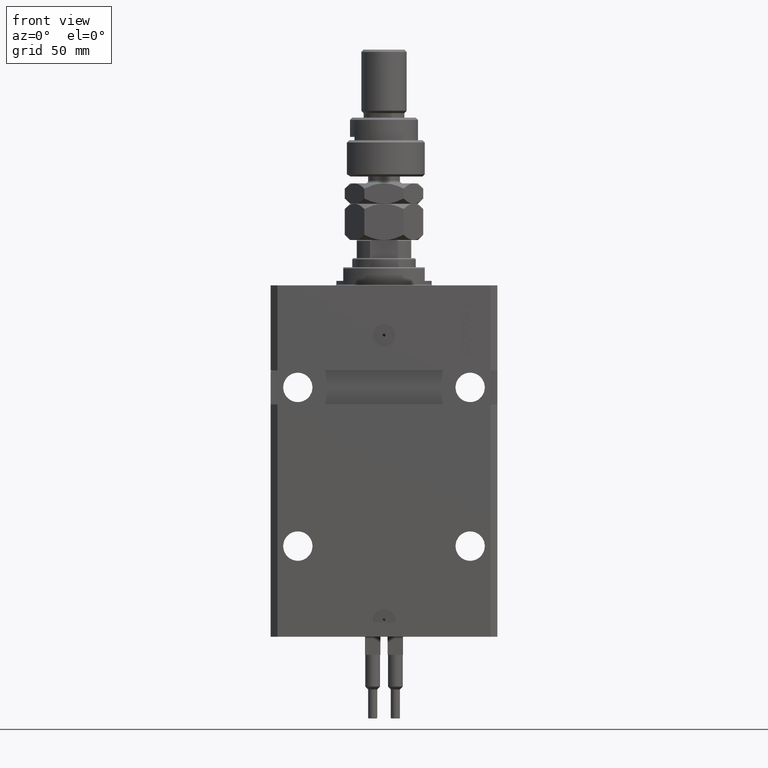
[diagram: clean part render]
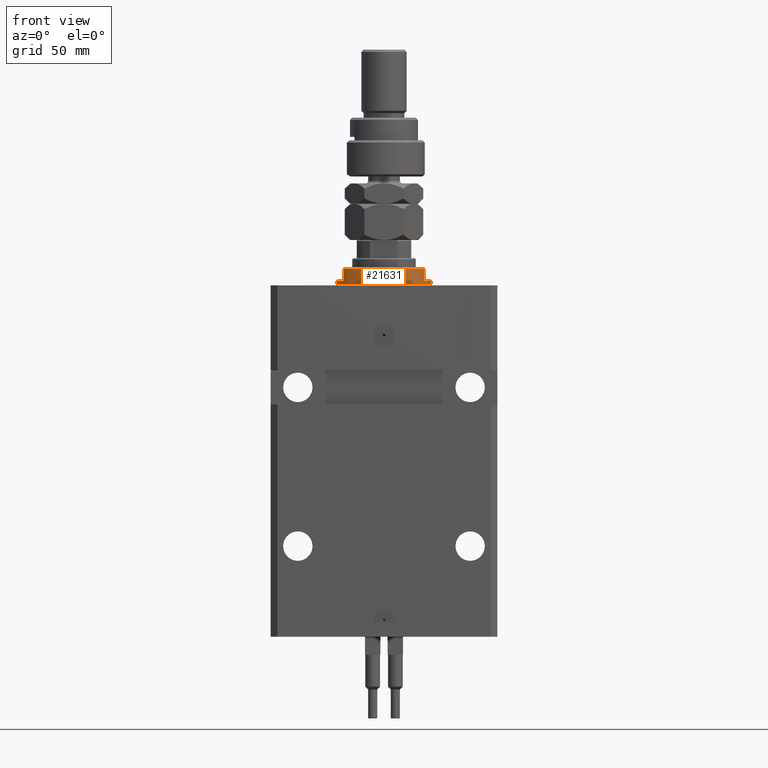
[diagram: same view with one face highlighted and labeled with its STEP entity id]
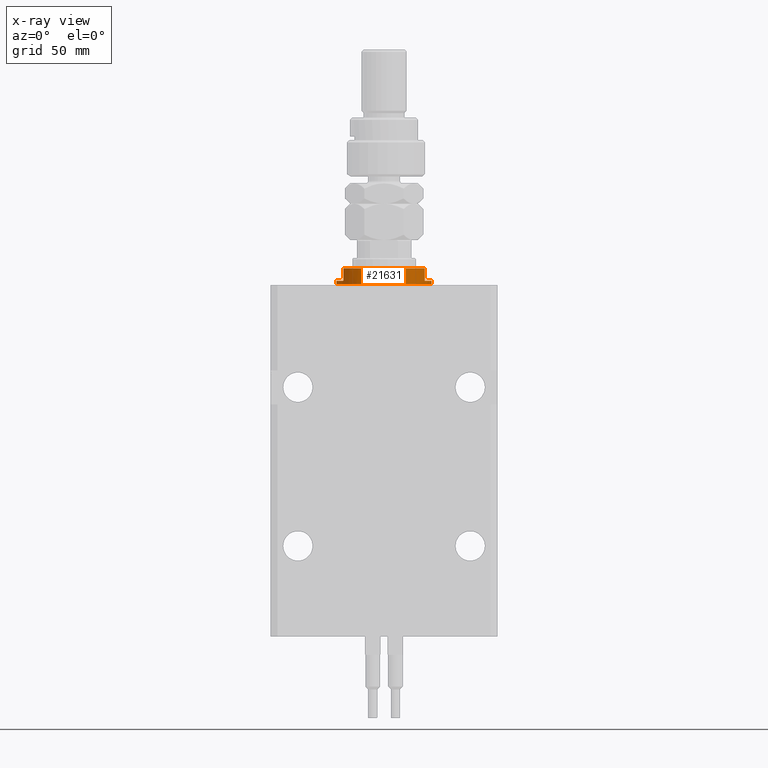
[diagram: x-ray of the same camera — body ghosted, the highlighted face saturated]
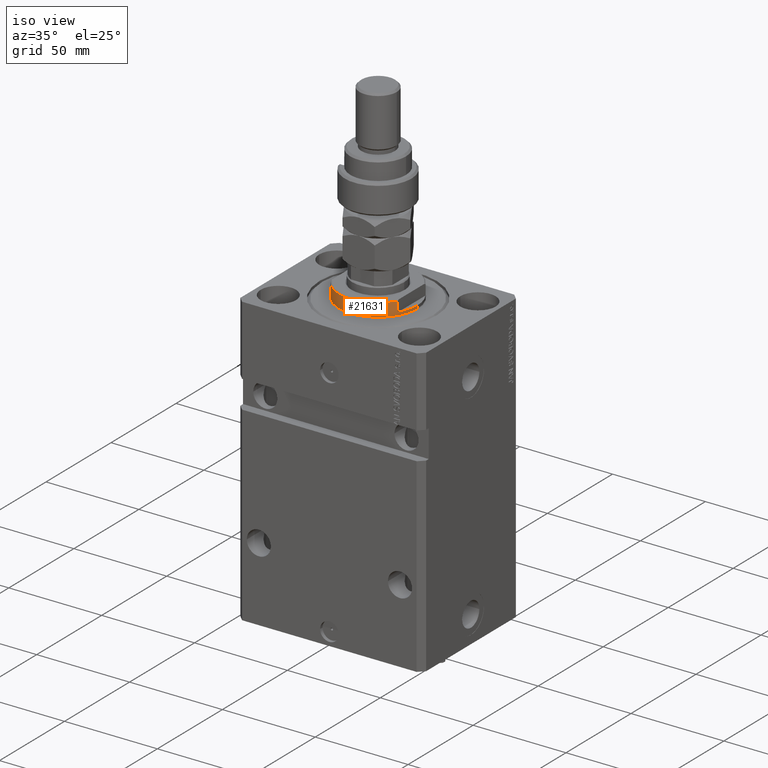
[diagram: same view with one face highlighted and labeled with its STEP entity id]
A machine part, front view. The second image highlights one B-rep face of the part: STEP entity #21631.
The next image is the same camera in x-ray: the body ghosted, the highlighted face saturated — about 0% of this face is hidden behind the body in this view.
A second angle (iso view) of the same face is appended — the face is thin or edge-on in the first view.
In plain terms, the highlighted cylindrical surface (partial cylindrical patch) has radius 21 mm, axis along (0, 0, -1).
Its self-contained STEP definition (entity closure, byte-faithful):
#1526 = DIRECTION ( 'NONE',  ( 0.000000000000000000, 0.000000000000000000, -1.000000000000000000 ) ) ;
#3687 = CARTESIAN_POINT ( 'NONE',  ( -21.00000000000000000, 2.571758278209441661E-15, -8.000000000000000000 ) ) ;
#4685 = ORIENTED_EDGE ( 'NONE', *, *, #40372, .T. ) ;
#5796 = CARTESIAN_POINT ( 'NONE',  ( 21.00000000000000000, 0.000000000000000000, -8.000000000000000000 ) ) ;
#9638 = ORIENTED_EDGE ( 'NONE', *, *, #14399, .F. ) ;
#9640 = VECTOR ( 'NONE', #27250, 1000.000000000000000 ) ;
#10115 = CARTESIAN_POINT ( 'NONE',  ( -21.00000000000000000, 2.571758278209441661E-15, -2.000000000000000000 ) ) ;
#10186 = CARTESIAN_POINT ( 'NONE',  ( -18.00000000000000000, -10.81665382639197048, -8.000000000000000000 ) ) ;
#10343 = DIRECTION ( 'NONE',  ( -0.000000000000000000, -0.000000000000000000, -1.000000000000000000 ) ) ;
#10390 = VECTOR ( 'NONE', #49017, 1000.000000000000000 ) ;
#11148 = DIRECTION ( 'NONE',  ( 0.000000000000000000, 0.000000000000000000, -1.000000000000000000 ) ) ;
#11280 = LINE ( 'NONE', #3687, #9640 ) ;
#11287 = DIRECTION ( 'NONE',  ( 1.000000000000000000, 0.000000000000000000, 0.000000000000000000 ) ) ;
#12791 = ORIENTED_EDGE ( 'NONE', *, *, #13886, .T. ) ;
#13308 = VERTEX_POINT ( 'NONE', #45004 ) ;
#13886 = EDGE_CURVE ( 'NONE', #13308, #42861, #36668, .T. ) ;
#14270 = AXIS2_PLACEMENT_3D ( 'NONE', #40522, #49911, #20093 ) ;
#14399 = EDGE_CURVE ( 'NONE', #13308, #19113, #31332, .T. ) ;
#14528 = CARTESIAN_POINT ( 'NONE',  ( 0.000000000000000000, 0.000000000000000000, -0.5000000000000004441 ) ) ;
#15102 = EDGE_CURVE ( 'NONE', #19113, #16288, #11280, .T. ) ;
#15413 = EDGE_CURVE ( 'NONE', #42861, #23446, #48991, .T. ) ;
#15478 = CYLINDRICAL_SURFACE ( 'NONE', #41717, 21.00000000000000000 ) ;
#16288 = VERTEX_POINT ( 'NONE', #16627 ) ;
#16627 = CARTESIAN_POINT ( 'NONE',  ( -21.00000000000000000, 2.571758278209441661E-15, -0.5000000000000004441 ) ) ;
#17948 = DIRECTION ( 'NONE',  ( 1.000000000000000000, 0.000000000000000000, 0.000000000000000000 ) ) ;
#18246 = CARTESIAN_POINT ( 'NONE',  ( 0.000000000000000000, 0.000000000000000000, -2.000000000000000000 ) ) ;
#18460 = CIRCLE ( 'NONE', #14270, 21.00000000000000000 ) ;
#18514 = CARTESIAN_POINT ( 'NONE',  ( 0.000000000000000000, 0.000000000000000000, -7.500000000000016875 ) ) ;
#19113 = VERTEX_POINT ( 'NONE', #10115 ) ;
#19410 = CARTESIAN_POINT ( 'NONE',  ( 0.000000000000000000, 0.000000000000000000, -8.000000000000000000 ) ) ;
#20093 = DIRECTION ( 'NONE',  ( -1.000000000000000000, 0.000000000000000000, 0.000000000000000000 ) ) ;
#21631 = ADVANCED_FACE ( 'NONE', ( #43278 ), #15478, .T. ) ;
#22533 = CIRCLE ( 'NONE', #24218, 21.00000000000000000 ) ;
#22546 = ORIENTED_EDGE ( 'NONE', *, *, #15102, .F. ) ;
#22965 = VERTEX_POINT ( 'NONE', #47357 ) ;
#23446 = VERTEX_POINT ( 'NONE', #28384 ) ;
#24218 = AXIS2_PLACEMENT_3D ( 'NONE', #14528, #10343, #17948 ) ;
#27250 = DIRECTION ( 'NONE',  ( -0.000000000000000000, -0.000000000000000000, 1.000000000000000000 ) ) ;
#27892 = EDGE_CURVE ( 'NONE', #33567, #16288, #22533, .T. ) ;
#28384 = CARTESIAN_POINT ( 'NONE',  ( 18.00000000000000000, -10.81665382639197048, -7.500000000000016875 ) ) ;
#30076 = EDGE_CURVE ( 'NONE', #22965, #33611, #18460, .T. ) ;
#30150 = LINE ( 'NONE', #5796, #33270 ) ;
#31332 = CIRCLE ( 'NONE', #38848, 21.00000000000000000 ) ;
#33270 = VECTOR ( 'NONE', #34339, 1000.000000000000000 ) ;
#33567 = VERTEX_POINT ( 'NONE', #36808 ) ;
#33611 = VERTEX_POINT ( 'NONE', #45216 ) ;
#33715 = ORIENTED_EDGE ( 'NONE', *, *, #36900, .F. ) ;
#33758 = CARTESIAN_POINT ( 'NONE',  ( 18.00000000000000000, -10.81665382639197048, -8.000000000000000000 ) ) ;
#33884 = AXIS2_PLACEMENT_3D ( 'NONE', #18514, #34490, #50522 ) ;
#34339 = DIRECTION ( 'NONE',  ( -0.000000000000000000, -0.000000000000000000, 1.000000000000000000 ) ) ;
#34490 = DIRECTION ( 'NONE',  ( 0.000000000000000000, 0.000000000000000000, 1.000000000000000000 ) ) ;
#35391 = DIRECTION ( 'NONE',  ( -0.000000000000000000, -0.000000000000000000, 1.000000000000000000 ) ) ;
#35861 = ORIENTED_EDGE ( 'NONE', *, *, #15413, .T. ) ;
#36668 = LINE ( 'NONE', #10186, #10390 ) ;
#36808 = CARTESIAN_POINT ( 'NONE',  ( 21.00000000000000000, 0.000000000000000000, -0.5000000000000004441 ) ) ;
#36900 = EDGE_CURVE ( 'NONE', #33611, #23446, #36913, .T. ) ;
#36913 = LINE ( 'NONE', #33758, #45411 ) ;
#37087 = ORIENTED_EDGE ( 'NONE', *, *, #30076, .F. ) ;
#38848 = AXIS2_PLACEMENT_3D ( 'NONE', #18246, #11148, #42624 ) ;
#40372 = EDGE_CURVE ( 'NONE', #22965, #33567, #30150, .T. ) ;
#40522 = CARTESIAN_POINT ( 'NONE',  ( 0.000000000000000000, 0.000000000000000000, -2.000000000000000000 ) ) ;
#41717 = AXIS2_PLACEMENT_3D ( 'NONE', #19410, #35391, #11287 ) ;
#42624 = DIRECTION ( 'NONE',  ( -1.000000000000000000, 0.000000000000000000, 0.000000000000000000 ) ) ;
#42861 = VERTEX_POINT ( 'NONE', #49872 ) ;
#43278 = FACE_OUTER_BOUND ( 'NONE', #48674, .T. ) ;
#44054 = ORIENTED_EDGE ( 'NONE', *, *, #27892, .T. ) ;
#45004 = CARTESIAN_POINT ( 'NONE',  ( -18.00000000000000000, -10.81665382639197048, -2.000000000000000000 ) ) ;
#45216 = CARTESIAN_POINT ( 'NONE',  ( 18.00000000000000000, -10.81665382639197048, -2.000000000000000000 ) ) ;
#45411 = VECTOR ( 'NONE', #1526, 1000.000000000000000 ) ;
#47357 = CARTESIAN_POINT ( 'NONE',  ( 21.00000000000000000, 0.000000000000000000, -2.000000000000000000 ) ) ;
#48674 = EDGE_LOOP ( 'NONE', ( #22546, #9638, #12791, #35861, #33715, #37087, #4685, #44054 ) ) ;
#48991 = CIRCLE ( 'NONE', #33884, 21.00000000000000000 ) ;
#49017 = DIRECTION ( 'NONE',  ( 0.000000000000000000, 0.000000000000000000, -1.000000000000000000 ) ) ;
#49872 = CARTESIAN_POINT ( 'NONE',  ( -18.00000000000000000, -10.81665382639197048, -7.500000000000017764 ) ) ;
#49911 = DIRECTION ( 'NONE',  ( 0.000000000000000000, 0.000000000000000000, -1.000000000000000000 ) ) ;
#50522 = DIRECTION ( 'NONE',  ( -1.000000000000000000, 0.000000000000000000, 0.000000000000000000 ) ) ;